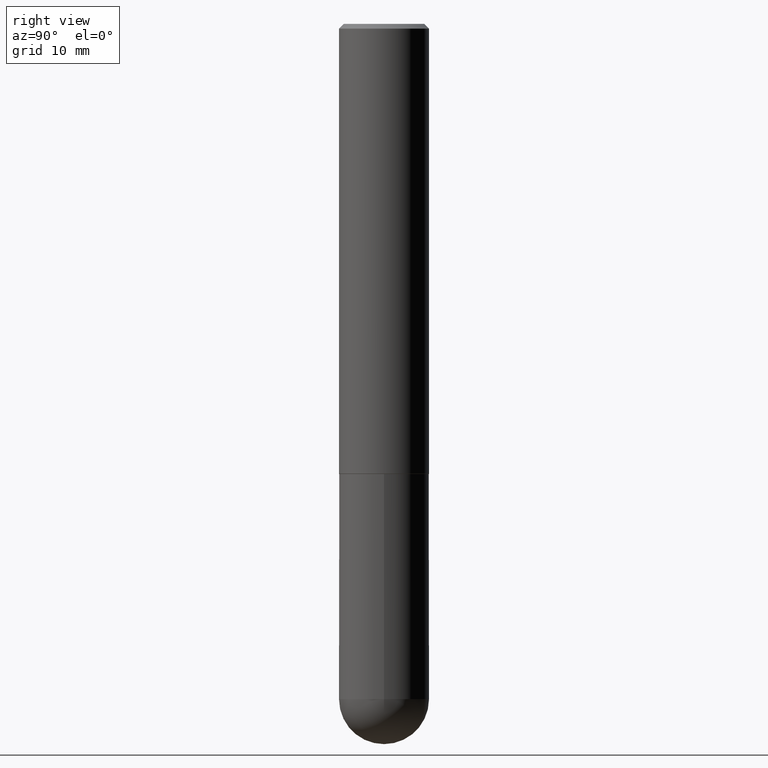
[diagram: clean part render]
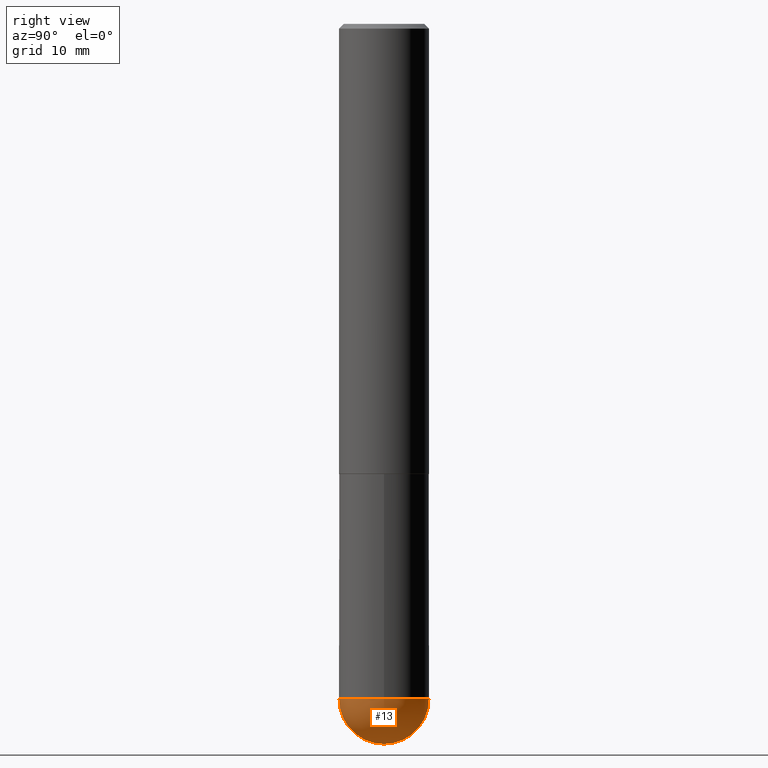
[diagram: same view with one face highlighted and labeled with its STEP entity id]
A machine part, right view. The second image highlights one B-rep face of the part: STEP entity #13.
In plain terms, the highlighted spherical surface has radius 4.7625 mm.
Its self-contained STEP definition (entity closure, byte-faithful):
#8 = DIRECTION ( 'NONE',  ( -1.000000000000000000, 6.982962677686266711E-15, -4.883557194083113462E-29 ) ) ;
#13 = ADVANCED_FACE ( 'NONE', ( #37 ), #318, .T. ) ;
#24 = CARTESIAN_POINT ( 'NONE',  ( -1.332267629550121781E-15, -0.1875000000000102141, -2.812499999999999556 ) ) ;
#37 = FACE_OUTER_BOUND ( 'NONE', #192, .T. ) ;
#42 = CARTESIAN_POINT ( 'NONE',  ( 6.546761239481810431E-29, -1.029397363363639678E-14, -2.812500000000000000 ) ) ;
#44 = ORIENTED_EDGE ( 'NONE', *, *, #354, .F. ) ;
#51 = DIRECTION ( 'NONE',  ( -7.105427357600999492E-15, -1.000000000000000000, 0.000000000000000000 ) ) ;
#56 = AXIS2_PLACEMENT_3D ( 'NONE', #42, #8, #136 ) ;
#65 = ORIENTED_EDGE ( 'NONE', *, *, #128, .F. ) ;
#68 = AXIS2_PLACEMENT_3D ( 'NONE', #243, #301, #401 ) ;
#69 = ORIENTED_EDGE ( 'NONE', *, *, #138, .F. ) ;
#71 = VERTEX_POINT ( 'NONE', #311 ) ;
#114 = CARTESIAN_POINT ( 'NONE',  ( 6.546761239481810431E-29, -1.029397363363639678E-14, -2.812500000000000000 ) ) ;
#117 = EDGE_CURVE ( 'NONE', #71, #186, #363, .T. ) ;
#122 = AXIS2_PLACEMENT_3D ( 'NONE', #177, #402, #51 ) ;
#128 = EDGE_CURVE ( 'NONE', #367, #186, #326, .T. ) ;
#136 = DIRECTION ( 'NONE',  ( 6.982962677686266711E-15, 1.000000000000000000, -2.913971193241875639E-15 ) ) ;
#138 = EDGE_CURVE ( 'NONE', #344, #367, #288, .T. ) ;
#175 = CARTESIAN_POINT ( 'NONE',  ( 0.1875000000000000555, -9.492464889979800759E-15, -2.812500000000000000 ) ) ;
#177 = CARTESIAN_POINT ( 'NONE',  ( 6.546761239481810431E-29, -1.029397363363639678E-14, -2.812500000000000000 ) ) ;
#178 = CARTESIAN_POINT ( 'NONE',  ( 6.877881017395696678E-29, -9.819791265496348060E-15, -2.812500000000000000 ) ) ;
#186 = VERTEX_POINT ( 'NONE', #305 ) ;
#192 = EDGE_LOOP ( 'NONE', ( #44, #242, #65, #69 ) ) ;
#239 = DIRECTION ( 'NONE',  ( 1.000000000000000000, -6.982962677686265922E-15, 4.883557194083112340E-29 ) ) ;
#242 = ORIENTED_EDGE ( 'NONE', *, *, #117, .T. ) ;
#243 = CARTESIAN_POINT ( 'NONE',  ( 6.877881017395696678E-29, -9.819791265496348060E-15, -2.812500000000000000 ) ) ;
#246 = CIRCLE ( 'NONE', #122, 0.1875000000000003331 ) ;
#248 = DIRECTION ( 'NONE',  ( 1.000000000000000000, -6.982962677686270655E-15, 0.000000000000000000 ) ) ;
#275 = DIRECTION ( 'NONE',  ( 6.982962677686265922E-15, 1.000000000000000000, 0.000000000000000000 ) ) ;
#288 = CIRCLE ( 'NONE', #68, 0.1875000000000000555 ) ;
#301 = DIRECTION ( 'NONE',  ( -2.445468806185136597E-29, 3.491481338843145583E-15, 1.000000000000000000 ) ) ;
#305 = CARTESIAN_POINT ( 'NONE',  ( 1.309305502066243245E-15, 0.1874999999999901468, -2.812500000000000444 ) ) ;
#308 = AXIS2_PLACEMENT_3D ( 'NONE', #178, #403, #248 ) ;
#311 = CARTESIAN_POINT ( 'NONE',  ( 7.013303824602581502E-29, -1.093714532092748102E-14, -3.000000000000000444 ) ) ;
#318 = SPHERICAL_SURFACE ( 'NONE', #56, 0.1875000000000003331 ) ;
#326 = CIRCLE ( 'NONE', #308, 0.1875000000000000555 ) ;
#344 = VERTEX_POINT ( 'NONE', #24 ) ;
#354 = EDGE_CURVE ( 'NONE', #71, #344, #246, .T. ) ;
#363 = CIRCLE ( 'NONE', #377, 0.1875000000000003331 ) ;
#367 = VERTEX_POINT ( 'NONE', #175 ) ;
#377 = AXIS2_PLACEMENT_3D ( 'NONE', #114, #239, #275 ) ;
#401 = DIRECTION ( 'NONE',  ( 1.000000000000000000, -6.982962677686270655E-15, 0.000000000000000000 ) ) ;
#402 = DIRECTION ( 'NONE',  ( -1.000000000000000000, 7.105427357601001070E-15, -4.926315508542082329E-29 ) ) ;
#403 = DIRECTION ( 'NONE',  ( -2.445468806185136597E-29, 3.491481338843145583E-15, 1.000000000000000000 ) ) ;